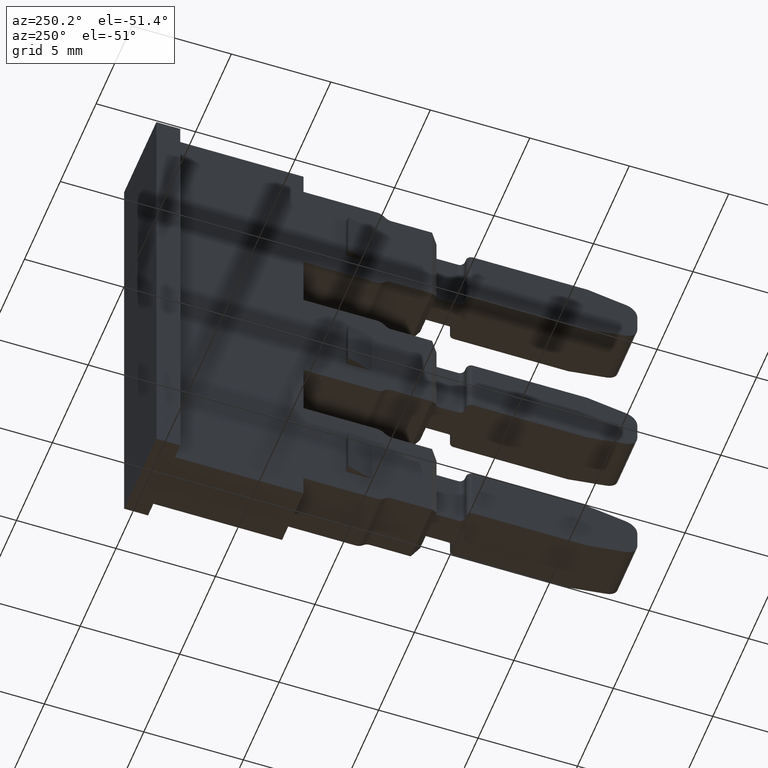
[diagram: clean part render]
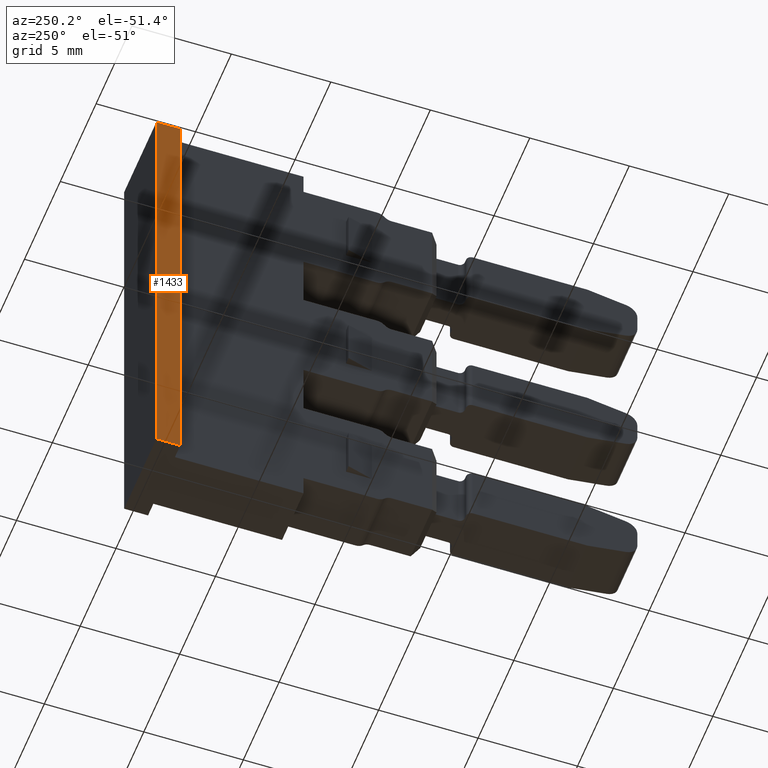
[diagram: same view with one face highlighted and labeled with its STEP entity id]
A machine part, auxiliary view. The second image highlights one B-rep face of the part: STEP entity #1433.
In plain terms, the highlighted planar face has unit normal (-1, 0, -0).
Its self-contained STEP definition (entity closure, byte-faithful):
#78 = PLANE ( 'NONE',  #3056 ) ;
#118 = CARTESIAN_POINT ( 'NONE',  ( 108.4952529172783400, 259.1101602476019300, 149.0398226793859900 ) ) ;
#122 = DIRECTION ( 'NONE',  ( -7.026728003956671600E-015, 0.0000000000000000000, 1.000000000000000000 ) ) ;
#132 = DIRECTION ( 'NONE',  ( -1.000000000000000000, 0.0000000000000000000, -7.026728003956671600E-015 ) ) ;
#134 = FACE_OUTER_BOUND ( 'NONE', #1955, .T. ) ;
#747 = CARTESIAN_POINT ( 'NONE',  ( 108.4952529172783100, 260.3101602476015200, 149.0398226793859900 ) ) ;
#768 = CARTESIAN_POINT ( 'NONE',  ( 108.4952529172782200, 260.3101602476015700, 173.0398226793859900 ) ) ;
#842 = CARTESIAN_POINT ( 'NONE',  ( 108.4952529172782200, 259.1101602476019800, 173.0398226793859900 ) ) ;
#865 = CARTESIAN_POINT ( 'NONE',  ( 108.4952529172783100, 259.1101602476019300, 149.0398226793859900 ) ) ;
#1095 = EDGE_CURVE ( 'NONE', #1640, #1643, #3883, .T. ) ;
#1127 = EDGE_CURVE ( 'NONE', #1584, #1643, #3966, .T. ) ;
#1136 = EDGE_CURVE ( 'NONE', #1640, #1590, #4010, .T. ) ;
#1165 = EDGE_CURVE ( 'NONE', #1590, #1584, #4097, .T. ) ;
#1433 = ADVANCED_FACE ( 'NONE', ( #134 ), #78, .T. ) ;
#1584 = VERTEX_POINT ( 'NONE', #747 ) ;
#1590 = VERTEX_POINT ( 'NONE', #768 ) ;
#1640 = VERTEX_POINT ( 'NONE', #842 ) ;
#1643 = VERTEX_POINT ( 'NONE', #865 ) ;
#1955 = EDGE_LOOP ( 'NONE', ( #2574, #2636, #2621, #2588 ) ) ;
#2574 = ORIENTED_EDGE ( 'NONE', *, *, #1095, .F. ) ;
#2588 = ORIENTED_EDGE ( 'NONE', *, *, #1127, .T. ) ;
#2621 = ORIENTED_EDGE ( 'NONE', *, *, #1165, .T. ) ;
#2636 = ORIENTED_EDGE ( 'NONE', *, *, #1136, .T. ) ;
#2666 = VECTOR ( 'NONE', #3859, 1000.000000000000000 ) ;
#2715 = VECTOR ( 'NONE', #3981, 1000.000000000000000 ) ;
#2718 = VECTOR ( 'NONE', #4006, 1000.000000000000000 ) ;
#2722 = VECTOR ( 'NONE', #4107, 1000.000000000000000 ) ;
#3056 = AXIS2_PLACEMENT_3D ( 'NONE', #118, #132, #122 ) ;
#3859 = DIRECTION ( 'NONE',  ( 0.0000000000000000000, -1.944757394685670000E-028, -1.000000000000000000 ) ) ;
#3865 = CARTESIAN_POINT ( 'NONE',  ( 108.4952529172782200, 259.1101602476019300, 193.7370111674605100 ) ) ;
#3883 = LINE ( 'NONE', #3865, #2666 ) ;
#3966 = LINE ( 'NONE', #3975, #2715 ) ;
#3975 = CARTESIAN_POINT ( 'NONE',  ( 108.4952529172783400, 259.1101602476019300, 149.0398226793859900 ) ) ;
#3981 = DIRECTION ( 'NONE',  ( -0.0000000000000000000, -1.000000000000000000, -0.0000000000000000000 ) ) ;
#4006 = DIRECTION ( 'NONE',  ( 0.0000000000000000000, 1.000000000000000000, 0.0000000000000000000 ) ) ;
#4010 = LINE ( 'NONE', #4022, #2718 ) ;
#4022 = CARTESIAN_POINT ( 'NONE',  ( 108.4952529172782200, 259.1101602476019800, 173.0398226793859900 ) ) ;
#4080 = CARTESIAN_POINT ( 'NONE',  ( 108.4952529172782200, 260.3101602476013500, 228.6398226793851100 ) ) ;
#4097 = LINE ( 'NONE', #4080, #2722 ) ;
#4107 = DIRECTION ( 'NONE',  ( -7.847720069483336500E-029, 2.968510761029624900E-015, -1.000000000000000000 ) ) ;